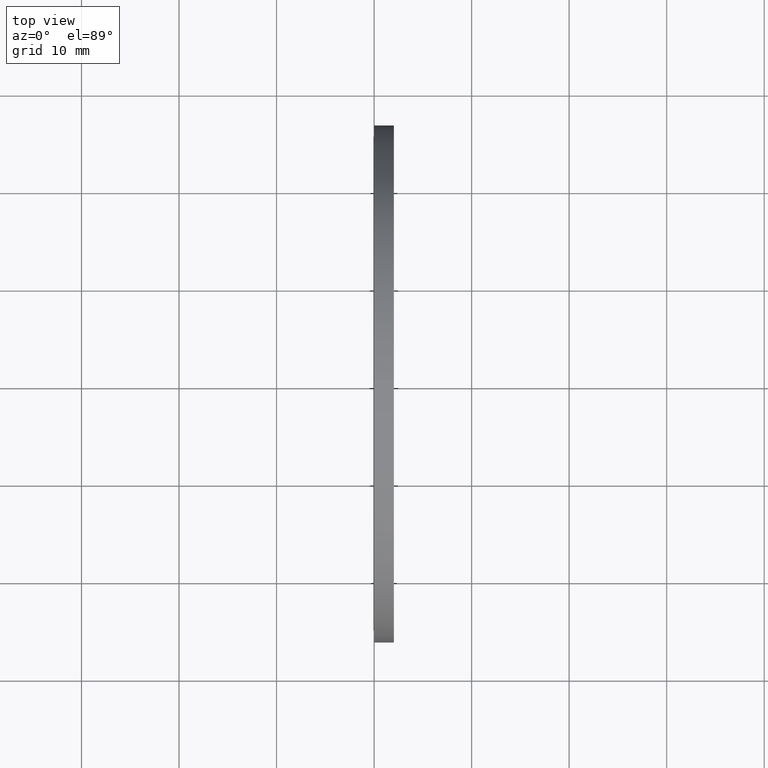
[diagram: clean part render]
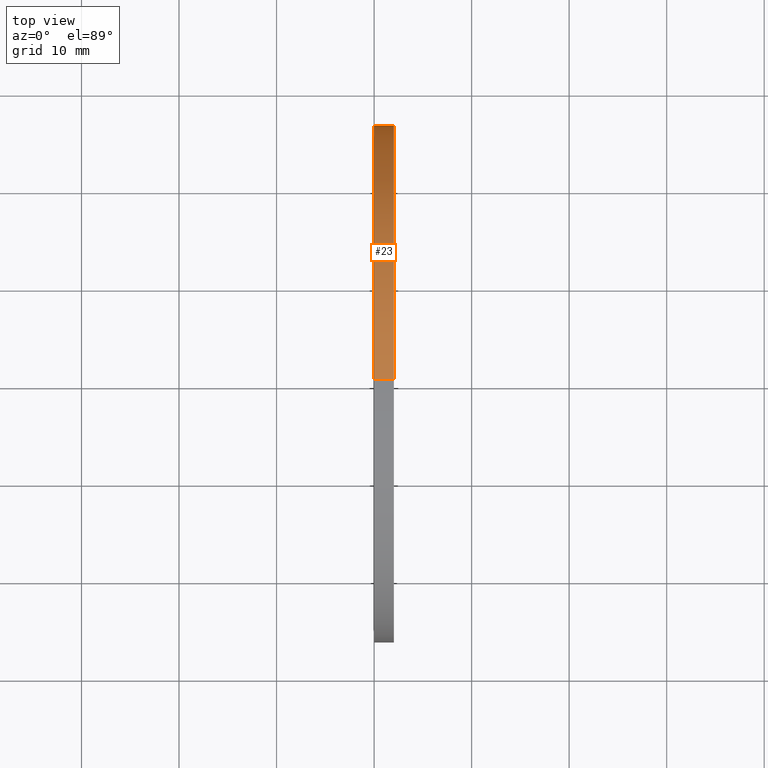
[diagram: same view with one face highlighted and labeled with its STEP entity id]
A machine part, top view. The second image highlights one B-rep face of the part: STEP entity #23.
In plain terms, the highlighted cylindrical surface (partial cylindrical patch) has radius 26.543 mm, axis along (-1, 0, 0).
Its self-contained STEP definition (entity closure, byte-faithful):
#15 = VERTEX_POINT ( 'NONE', #47 ) ;
#23 = ADVANCED_FACE ( 'NONE', ( #36 ), #34, .T. ) ;
#24 = ORIENTED_EDGE ( 'NONE', *, *, #25, .T. ) ;
#25 = EDGE_CURVE ( 'NONE', #27, #15, #77, .T. ) ;
#27 = VERTEX_POINT ( 'NONE', #68 ) ;
#29 = EDGE_LOOP ( 'NONE', ( #24, #125, #95, #101 ) ) ;
#34 = CYLINDRICAL_SURFACE ( 'NONE', #35, 1.044999999999999900 ) ;
#35 = AXIS2_PLACEMENT_3D ( 'NONE', #81, #80, #79 ) ;
#36 = FACE_OUTER_BOUND ( 'NONE', #29, .T. ) ;
#47 = CARTESIAN_POINT ( 'NONE',  ( 0.07999999999999996000, 1.279755905108984100E-016, -1.044999999999999900 ) ) ;
#68 = CARTESIAN_POINT ( 'NONE',  ( 0.07999999999999996000, 0.0000000000000000000, 1.044999999999999900 ) ) ;
#73 = DIRECTION ( 'NONE',  ( 0.0000000000000000000, 0.0000000000000000000, 1.000000000000000000 ) ) ;
#74 = DIRECTION ( 'NONE',  ( -1.000000000000000000, 0.0000000000000000000, 0.0000000000000000000 ) ) ;
#75 = CARTESIAN_POINT ( 'NONE',  ( 0.07999999999999996000, 0.0000000000000000000, 0.0000000000000000000 ) ) ;
#76 = AXIS2_PLACEMENT_3D ( 'NONE', #75, #74, #73 ) ;
#77 = CIRCLE ( 'NONE', #76, 1.044999999999999900 ) ;
#79 = DIRECTION ( 'NONE',  ( 0.0000000000000000000, 0.0000000000000000000, 1.000000000000000000 ) ) ;
#80 = DIRECTION ( 'NONE',  ( -1.000000000000000000, 0.0000000000000000000, 0.0000000000000000000 ) ) ;
#81 = CARTESIAN_POINT ( 'NONE',  ( -1.721125226614714300, 0.0000000000000000000, 0.0000000000000000000 ) ) ;
#83 = DIRECTION ( 'NONE',  ( -1.000000000000000000, 0.0000000000000000000, 0.0000000000000000000 ) ) ;
#84 = CARTESIAN_POINT ( 'NONE',  ( 0.0000000000000000000, 0.0000000000000000000, 0.0000000000000000000 ) ) ;
#85 = AXIS2_PLACEMENT_3D ( 'NONE', #84, #83, #196 ) ;
#86 = CIRCLE ( 'NONE', #85, 1.044999999999999900 ) ;
#87 = CARTESIAN_POINT ( 'NONE',  ( 0.0000000000000000000, 1.279755905108984100E-016, -1.044999999999999900 ) ) ;
#94 = VERTEX_POINT ( 'NONE', #87 ) ;
#95 = ORIENTED_EDGE ( 'NONE', *, *, #96, .F. ) ;
#96 = EDGE_CURVE ( 'NONE', #97, #94, #86, .T. ) ;
#97 = VERTEX_POINT ( 'NONE', #200 ) ;
#101 = ORIENTED_EDGE ( 'NONE', *, *, #102, .F. ) ;
#102 = EDGE_CURVE ( 'NONE', #27, #97, #245, .T. ) ;
#125 = ORIENTED_EDGE ( 'NONE', *, *, #126, .T. ) ;
#126 = EDGE_CURVE ( 'NONE', #15, #94, #197, .T. ) ;
#196 = DIRECTION ( 'NONE',  ( 0.0000000000000000000, 0.0000000000000000000, 1.000000000000000000 ) ) ;
#197 = LINE ( 'NONE', #239, #238 ) ;
#200 = CARTESIAN_POINT ( 'NONE',  ( 0.0000000000000000000, 0.0000000000000000000, 1.044999999999999900 ) ) ;
#237 = DIRECTION ( 'NONE',  ( -1.000000000000000000, 0.0000000000000000000, 0.0000000000000000000 ) ) ;
#238 = VECTOR ( 'NONE', #237, 39.37007874015748100 ) ;
#239 = CARTESIAN_POINT ( 'NONE',  ( -1.721125226614714300, 1.279755905108984100E-016, -1.044999999999999900 ) ) ;
#242 = DIRECTION ( 'NONE',  ( -1.000000000000000000, 0.0000000000000000000, 0.0000000000000000000 ) ) ;
#243 = VECTOR ( 'NONE', #242, 39.37007874015748100 ) ;
#244 = CARTESIAN_POINT ( 'NONE',  ( -1.721125226614714300, 0.0000000000000000000, 1.044999999999999900 ) ) ;
#245 = LINE ( 'NONE', #244, #243 ) ;